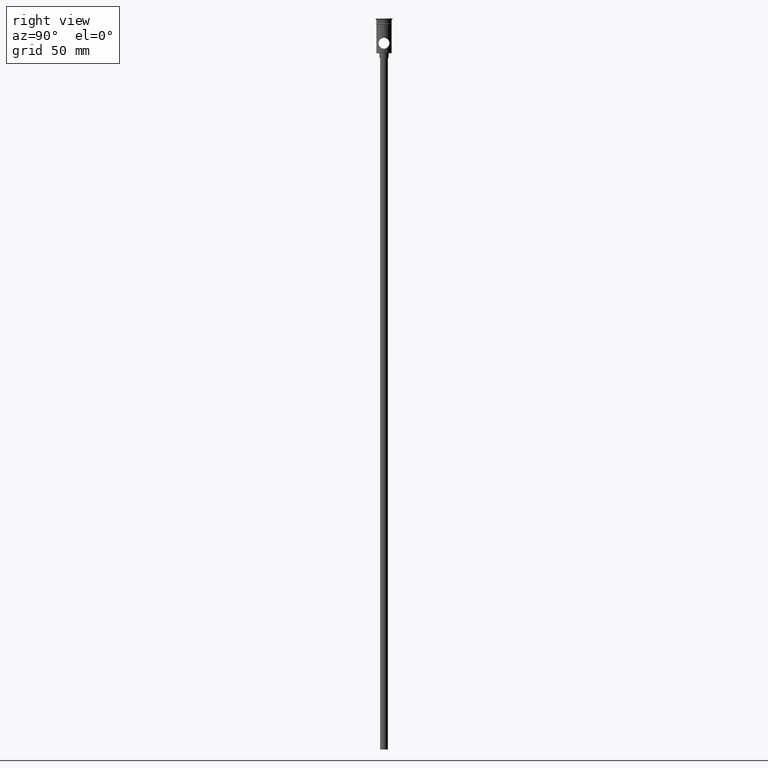
[diagram: clean part render]
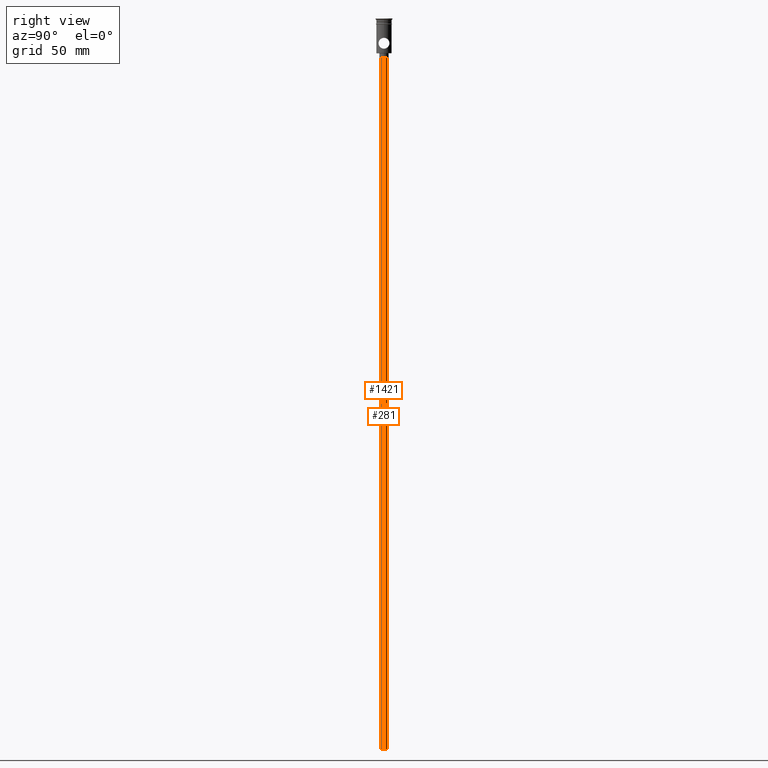
[diagram: same view with one multi-face feature highlighted, each face labeled with its STEP entity id]
A machine part, right view. The highlighted faces form ONE feature: a constant-radius fillet chain: 2 tangent blend faces with common blend radius 2.5 mm. The faces share edges in the B-rep.
Their STEP definitions:
[1] entity #281 (Cylinder):
#24 = DIRECTION ( 'NONE',  ( -1.000000000000000000, 0.000000000000000000, 0.000000000000000000 ) ) ;
#78 = CARTESIAN_POINT ( 'NONE',  ( -2.500000000000000000, 3.061616997868383141E-16, -25.50000000000000000 ) ) ;
#122 = VERTEX_POINT ( 'NONE', #554 ) ;
#150 = CARTESIAN_POINT ( 'NONE',  ( 0.000000000000000000, 0.000000000000000000, -472.5000000000000568 ) ) ;
#151 = VECTOR ( 'NONE', #724, 1000.000000000000000 ) ;
#157 = CYLINDRICAL_SURFACE ( 'NONE', #928, 2.500000000000000000 ) ;
#188 = CARTESIAN_POINT ( 'NONE',  ( 2.500000000000000000, 0.000000000000000000, -472.5000000000000568 ) ) ;
#242 = AXIS2_PLACEMENT_3D ( 'NONE', #150, #686, #24 ) ;
#250 = VERTEX_POINT ( 'NONE', #711 ) ;
#251 = DIRECTION ( 'NONE',  ( 0.000000000000000000, 0.000000000000000000, -1.000000000000000000 ) ) ;
#273 = DIRECTION ( 'NONE',  ( -0.000000000000000000, -0.000000000000000000, 1.000000000000000000 ) ) ;
#278 = CARTESIAN_POINT ( 'NONE',  ( -2.500000000000000000, 3.061616997868383141E-16, -472.5000000000000568 ) ) ;
#281 = ADVANCED_FACE ( 'NONE', ( #374 ), #157, .T. ) ;
#372 = ORIENTED_EDGE ( 'NONE', *, *, #506, .T. ) ;
#374 = FACE_OUTER_BOUND ( 'NONE', #720, .T. ) ;
#473 = AXIS2_PLACEMENT_3D ( 'NONE', #592, #251, #566 ) ;
#488 = CARTESIAN_POINT ( 'NONE',  ( 0.000000000000000000, 0.000000000000000000, -472.5000000000000568 ) ) ;
#500 = DIRECTION ( 'NONE',  ( 1.000000000000000000, 0.000000000000000000, 0.000000000000000000 ) ) ;
#502 = CIRCLE ( 'NONE', #242, 2.500000000000000000 ) ;
#506 = EDGE_CURVE ( 'NONE', #947, #122, #1223, .T. ) ;
#554 = CARTESIAN_POINT ( 'NONE',  ( 2.500000000000000000, 0.000000000000000000, -25.50000000000000000 ) ) ;
#566 = DIRECTION ( 'NONE',  ( -1.000000000000000000, 0.000000000000000000, 0.000000000000000000 ) ) ;
#585 = EDGE_CURVE ( 'NONE', #250, #947, #1288, .T. ) ;
#592 = CARTESIAN_POINT ( 'NONE',  ( 0.000000000000000000, 0.000000000000000000, -25.50000000000000000 ) ) ;
#686 = DIRECTION ( 'NONE',  ( 0.000000000000000000, 0.000000000000000000, -1.000000000000000000 ) ) ;
#711 = CARTESIAN_POINT ( 'NONE',  ( -2.500000000000000000, 3.061616997868383141E-16, -472.5000000000000568 ) ) ;
#720 = EDGE_LOOP ( 'NONE', ( #1291, #886, #372, #851 ) ) ;
#724 = DIRECTION ( 'NONE',  ( -0.000000000000000000, -0.000000000000000000, 1.000000000000000000 ) ) ;
#851 = ORIENTED_EDGE ( 'NONE', *, *, #923, .F. ) ;
#858 = VECTOR ( 'NONE', #1093, 1000.000000000000000 ) ;
#886 = ORIENTED_EDGE ( 'NONE', *, *, #585, .T. ) ;
#923 = EDGE_CURVE ( 'NONE', #1146, #122, #1210, .T. ) ;
#928 = AXIS2_PLACEMENT_3D ( 'NONE', #488, #273, #500 ) ;
#947 = VERTEX_POINT ( 'NONE', #78 ) ;
#1093 = DIRECTION ( 'NONE',  ( -0.000000000000000000, -0.000000000000000000, 1.000000000000000000 ) ) ;
#1146 = VERTEX_POINT ( 'NONE', #1229 ) ;
#1210 = LINE ( 'NONE', #188, #858 ) ;
#1223 = CIRCLE ( 'NONE', #473, 2.500000000000000000 ) ;
#1226 = EDGE_CURVE ( 'NONE', #250, #1146, #502, .T. ) ;
#1229 = CARTESIAN_POINT ( 'NONE',  ( 2.500000000000000000, 0.000000000000000000, -472.5000000000000568 ) ) ;
#1288 = LINE ( 'NONE', #278, #151 ) ;
#1291 = ORIENTED_EDGE ( 'NONE', *, *, #1226, .F. ) ;
[2] entity #1421 (Cylinder):
#28 = EDGE_CURVE ( 'NONE', #1146, #250, #497, .T. ) ;
#78 = CARTESIAN_POINT ( 'NONE',  ( -2.500000000000000000, 3.061616997868383141E-16, -25.50000000000000000 ) ) ;
#122 = VERTEX_POINT ( 'NONE', #554 ) ;
#151 = VECTOR ( 'NONE', #724, 1000.000000000000000 ) ;
#160 = ORIENTED_EDGE ( 'NONE', *, *, #1304, .T. ) ;
#188 = CARTESIAN_POINT ( 'NONE',  ( 2.500000000000000000, 0.000000000000000000, -472.5000000000000568 ) ) ;
#212 = CARTESIAN_POINT ( 'NONE',  ( 0.000000000000000000, 0.000000000000000000, -472.5000000000000568 ) ) ;
#246 = DIRECTION ( 'NONE',  ( -1.000000000000000000, 0.000000000000000000, 0.000000000000000000 ) ) ;
#250 = VERTEX_POINT ( 'NONE', #711 ) ;
#278 = CARTESIAN_POINT ( 'NONE',  ( -2.500000000000000000, 3.061616997868383141E-16, -472.5000000000000568 ) ) ;
#294 = CIRCLE ( 'NONE', #578, 2.500000000000000000 ) ;
#324 = DIRECTION ( 'NONE',  ( 0.000000000000000000, 0.000000000000000000, -1.000000000000000000 ) ) ;
#386 = ORIENTED_EDGE ( 'NONE', *, *, #585, .F. ) ;
#397 = FACE_OUTER_BOUND ( 'NONE', #807, .T. ) ;
#497 = CIRCLE ( 'NONE', #1449, 2.500000000000000000 ) ;
#527 = AXIS2_PLACEMENT_3D ( 'NONE', #1402, #839, #1213 ) ;
#554 = CARTESIAN_POINT ( 'NONE',  ( 2.500000000000000000, 0.000000000000000000, -25.50000000000000000 ) ) ;
#578 = AXIS2_PLACEMENT_3D ( 'NONE', #1290, #1022, #246 ) ;
#585 = EDGE_CURVE ( 'NONE', #250, #947, #1288, .T. ) ;
#611 = CYLINDRICAL_SURFACE ( 'NONE', #527, 2.500000000000000000 ) ;
#711 = CARTESIAN_POINT ( 'NONE',  ( -2.500000000000000000, 3.061616997868383141E-16, -472.5000000000000568 ) ) ;
#724 = DIRECTION ( 'NONE',  ( -0.000000000000000000, -0.000000000000000000, 1.000000000000000000 ) ) ;
#807 = EDGE_LOOP ( 'NONE', ( #386, #1251, #1266, #160 ) ) ;
#839 = DIRECTION ( 'NONE',  ( -0.000000000000000000, -0.000000000000000000, 1.000000000000000000 ) ) ;
#858 = VECTOR ( 'NONE', #1093, 1000.000000000000000 ) ;
#923 = EDGE_CURVE ( 'NONE', #1146, #122, #1210, .T. ) ;
#947 = VERTEX_POINT ( 'NONE', #78 ) ;
#1022 = DIRECTION ( 'NONE',  ( 0.000000000000000000, 0.000000000000000000, -1.000000000000000000 ) ) ;
#1093 = DIRECTION ( 'NONE',  ( -0.000000000000000000, -0.000000000000000000, 1.000000000000000000 ) ) ;
#1146 = VERTEX_POINT ( 'NONE', #1229 ) ;
#1210 = LINE ( 'NONE', #188, #858 ) ;
#1213 = DIRECTION ( 'NONE',  ( 1.000000000000000000, 0.000000000000000000, 0.000000000000000000 ) ) ;
#1229 = CARTESIAN_POINT ( 'NONE',  ( 2.500000000000000000, 0.000000000000000000, -472.5000000000000568 ) ) ;
#1237 = DIRECTION ( 'NONE',  ( -1.000000000000000000, 0.000000000000000000, 0.000000000000000000 ) ) ;
#1251 = ORIENTED_EDGE ( 'NONE', *, *, #28, .F. ) ;
#1266 = ORIENTED_EDGE ( 'NONE', *, *, #923, .T. ) ;
#1288 = LINE ( 'NONE', #278, #151 ) ;
#1290 = CARTESIAN_POINT ( 'NONE',  ( 0.000000000000000000, 0.000000000000000000, -25.50000000000000000 ) ) ;
#1304 = EDGE_CURVE ( 'NONE', #122, #947, #294, .T. ) ;
#1402 = CARTESIAN_POINT ( 'NONE',  ( 0.000000000000000000, 0.000000000000000000, -472.5000000000000568 ) ) ;
#1421 = ADVANCED_FACE ( 'NONE', ( #397 ), #611, .T. ) ;
#1449 = AXIS2_PLACEMENT_3D ( 'NONE', #212, #324, #1237 ) ;